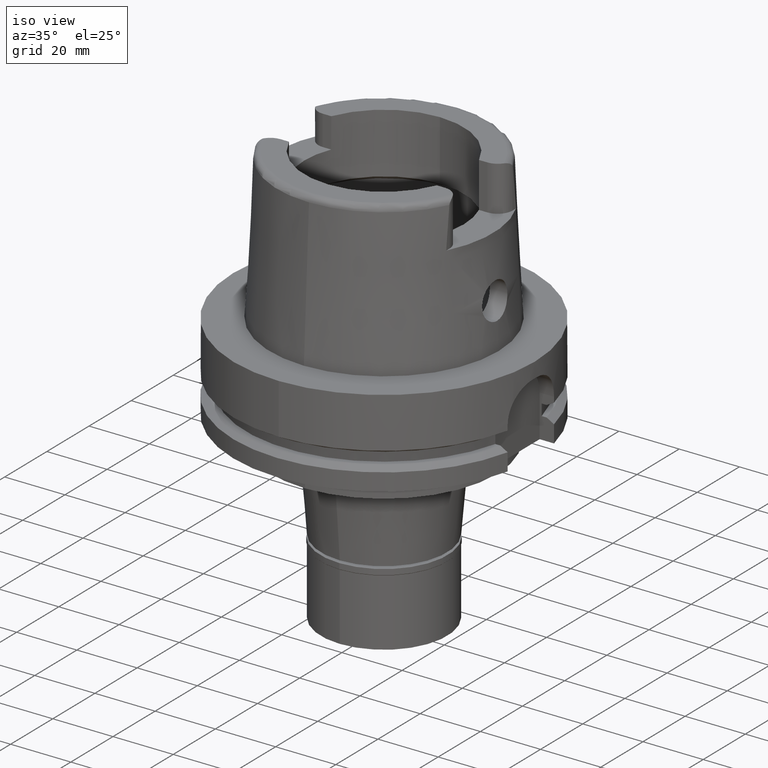
[diagram: clean part render]
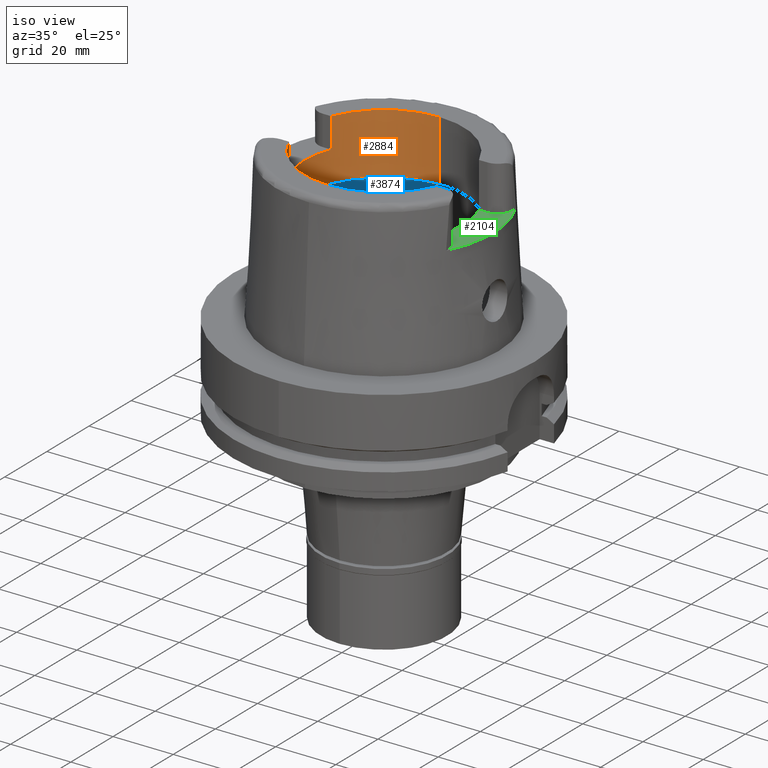
[diagram: same view with three faces highlighted in distinct colors, each labeled with its STEP entity id]
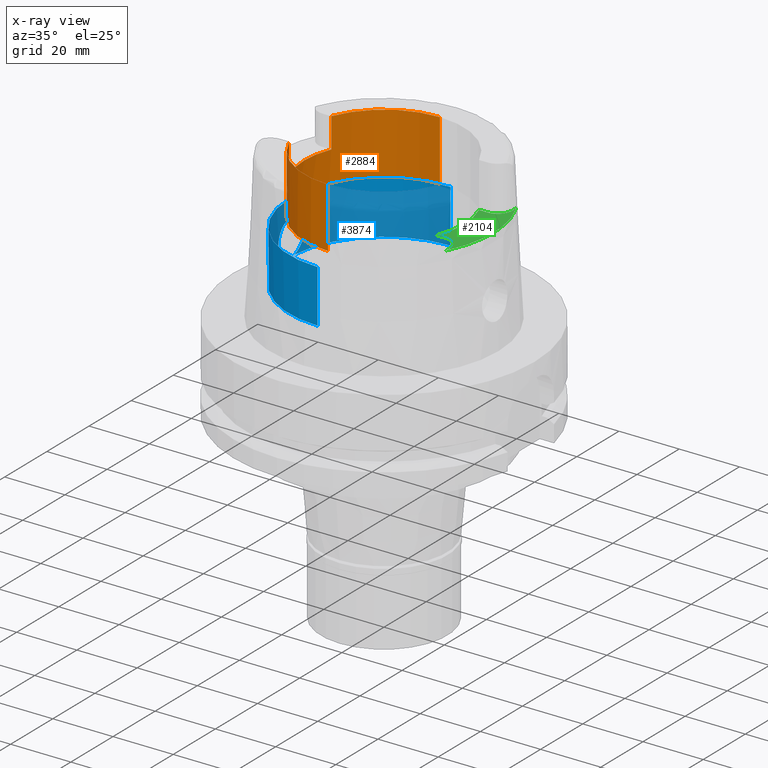
[diagram: x-ray of the same camera — body ghosted, the three highlighted faces saturated]
A machine part, iso view with three faces highlighted in distinct colors.
The next image is the same camera in x-ray (body ghosted, the three faces saturated) — at least one of them is partly hidden behind the body in this view.
Their STEP definitions:

[orange] entity #2884 — the highlighted cylindrical surface (partial cylindrical patch) has radius 26.5 mm, axis along (0, 0, 1).
#131 = CARTESIAN_POINT ( 'NONE',  ( 0.0000000000000000000, -26.50000000000000000, 30.00337567297000163 ) ) ;
#225 = AXIS2_PLACEMENT_3D ( 'NONE', #5357, #2280, #4033 ) ;
#238 = DIRECTION ( 'NONE',  ( 0.0000000000000000000, 0.0000000000000000000, 1.000000000000000000 ) ) ;
#278 = CARTESIAN_POINT ( 'NONE',  ( -24.53670515777999839, 10.00999999999999979, 40.00000000000000000 ) ) ;
#404 = ORIENTED_EDGE ( 'NONE', *, *, #2587, .T. ) ;
#452 = CARTESIAN_POINT ( 'NONE',  ( -24.53670515777999839, 10.00999999999999979, 50.00000000000000000 ) ) ;
#533 = VERTEX_POINT ( 'NONE', #5253 ) ;
#673 = LINE ( 'NONE', #1520, #4813 ) ;
#742 = EDGE_LOOP ( 'NONE', ( #4095, #404, #3862, #1798, #3467, #3884, #4125, #2372 ) ) ;
#879 = DIRECTION ( 'NONE',  ( 0.0000000000000000000, -4.406108640804999471E-14, 1.000000000000000000 ) ) ;
#889 = VERTEX_POINT ( 'NONE', #5420 ) ;
#968 = CARTESIAN_POINT ( 'NONE',  ( -24.53670515777999839, -10.00999999999999979, 50.00000000000000000 ) ) ;
#1059 = EDGE_CURVE ( 'NONE', #5304, #4341, #1910, .T. ) ;
#1161 = EDGE_CURVE ( 'NONE', #2266, #5102, #673, .T. ) ;
#1184 = CARTESIAN_POINT ( 'NONE',  ( 0.0000000000000000000, 26.50000000000000000, 30.00337567297000163 ) ) ;
#1299 = CARTESIAN_POINT ( 'NONE',  ( 0.0000000000000000000, 0.0000000000000000000, 30.00337567297000163 ) ) ;
#1425 = VECTOR ( 'NONE', #1543, 1000.000000000000000 ) ;
#1437 = DIRECTION ( 'NONE',  ( 0.0000000000000000000, 4.406108640804999471E-14, 1.000000000000000000 ) ) ;
#1520 = CARTESIAN_POINT ( 'NONE',  ( 0.0000000000000000000, -26.50000000000000000, 30.00337567297000163 ) ) ;
#1543 = DIRECTION ( 'NONE',  ( 0.0000000000000000000, 0.0000000000000000000, 1.000000000000000000 ) ) ;
#1551 = CYLINDRICAL_SURFACE ( 'NONE', #1946, 26.50000000000000000 ) ;
#1592 = CARTESIAN_POINT ( 'NONE',  ( -24.53670515777999839, -10.00999999999999979, 50.00000000000000000 ) ) ;
#1645 = LINE ( 'NONE', #1592, #5634 ) ;
#1703 = EDGE_CURVE ( 'NONE', #4196, #889, #1645, .T. ) ;
#1798 = ORIENTED_EDGE ( 'NONE', *, *, #4763, .T. ) ;
#1852 = AXIS2_PLACEMENT_3D ( 'NONE', #5348, #3167, #3297 ) ;
#1896 = CARTESIAN_POINT ( 'NONE',  ( 0.0000000000000000000, 0.0000000000000000000, 50.00000000000000000 ) ) ;
#1910 = LINE ( 'NONE', #2762, #1425 ) ;
#1928 = CIRCLE ( 'NONE', #225, 26.50000000000000000 ) ;
#1936 = EDGE_CURVE ( 'NONE', #1952, #4341, #1928, .T. ) ;
#1946 = AXIS2_PLACEMENT_3D ( 'NONE', #5044, #238, #2431 ) ;
#1952 = VERTEX_POINT ( 'NONE', #4574 ) ;
#2266 = VERTEX_POINT ( 'NONE', #131 ) ;
#2280 = DIRECTION ( 'NONE',  ( 0.0000000000000000000, 0.0000000000000000000, 1.000000000000000000 ) ) ;
#2299 = AXIS2_PLACEMENT_3D ( 'NONE', #1896, #4856, #3656 ) ;
#2372 = ORIENTED_EDGE ( 'NONE', *, *, #4652, .T. ) ;
#2431 = DIRECTION ( 'NONE',  ( 0.0000000000000000000, 1.000000000000000000, 0.0000000000000000000 ) ) ;
#2461 = DIRECTION ( 'NONE',  ( 0.0000000000000000000, 0.0000000000000000000, -1.000000000000000000 ) ) ;
#2547 = DIRECTION ( 'NONE',  ( 0.0000000000000000000, -1.000000000000000000, 0.0000000000000000000 ) ) ;
#2587 = EDGE_CURVE ( 'NONE', #4196, #5102, #4597, .T. ) ;
#2762 = CARTESIAN_POINT ( 'NONE',  ( -24.53670515777999839, 10.00999999999999979, 40.00000000000000000 ) ) ;
#2884 = ADVANCED_FACE ( 'NONE', ( #3357 ), #1551, .F. ) ;
#2916 = LINE ( 'NONE', #1184, #4585 ) ;
#3167 = DIRECTION ( 'NONE',  ( 0.0000000000000000000, 0.0000000000000000000, 1.000000000000000000 ) ) ;
#3178 = EDGE_CURVE ( 'NONE', #533, #1952, #2916, .T. ) ;
#3297 = DIRECTION ( 'NONE',  ( -0.9259134021805098813, 0.3777358490566039562, 0.0000000000000000000 ) ) ;
#3338 = DIRECTION ( 'NONE',  ( 0.0000000000000000000, 0.0000000000000000000, -1.000000000000000000 ) ) ;
#3357 = FACE_OUTER_BOUND ( 'NONE', #742, .T. ) ;
#3467 = ORIENTED_EDGE ( 'NONE', *, *, #3178, .T. ) ;
#3656 = DIRECTION ( 'NONE',  ( -0.9259134021805098813, -0.3777358490566039562, 0.0000000000000000000 ) ) ;
#3862 = ORIENTED_EDGE ( 'NONE', *, *, #1161, .F. ) ;
#3884 = ORIENTED_EDGE ( 'NONE', *, *, #1936, .T. ) ;
#3904 = CARTESIAN_POINT ( 'NONE',  ( 0.0000000000000000000, -26.50000000000000000, 50.00000000000000000 ) ) ;
#4033 = DIRECTION ( 'NONE',  ( 0.0000000000000000000, 1.000000000000000000, 0.0000000000000000000 ) ) ;
#4095 = ORIENTED_EDGE ( 'NONE', *, *, #1703, .F. ) ;
#4125 = ORIENTED_EDGE ( 'NONE', *, *, #1059, .F. ) ;
#4196 = VERTEX_POINT ( 'NONE', #968 ) ;
#4341 = VERTEX_POINT ( 'NONE', #452 ) ;
#4574 = CARTESIAN_POINT ( 'NONE',  ( 0.0000000000000000000, 26.50000000000000000, 50.00000000000000000 ) ) ;
#4585 = VECTOR ( 'NONE', #879, 1000.000000000000000 ) ;
#4597 = CIRCLE ( 'NONE', #2299, 26.50000000000000711 ) ;
#4604 = CIRCLE ( 'NONE', #5612, 26.50000000000000000 ) ;
#4652 = EDGE_CURVE ( 'NONE', #5304, #889, #4967, .T. ) ;
#4763 = EDGE_CURVE ( 'NONE', #2266, #533, #4604, .T. ) ;
#4813 = VECTOR ( 'NONE', #1437, 1000.000000000000000 ) ;
#4856 = DIRECTION ( 'NONE',  ( 0.0000000000000000000, 0.0000000000000000000, 1.000000000000000000 ) ) ;
#4967 = CIRCLE ( 'NONE', #1852, 26.50000000000000711 ) ;
#5044 = CARTESIAN_POINT ( 'NONE',  ( 0.0000000000000000000, 0.0000000000000000000, -89.12500000000000000 ) ) ;
#5102 = VERTEX_POINT ( 'NONE', #3904 ) ;
#5253 = CARTESIAN_POINT ( 'NONE',  ( 0.0000000000000000000, 26.50000000000000000, 30.00337567297000163 ) ) ;
#5304 = VERTEX_POINT ( 'NONE', #278 ) ;
#5348 = CARTESIAN_POINT ( 'NONE',  ( 0.0000000000000000000, 0.0000000000000000000, 40.00000000000000000 ) ) ;
#5357 = CARTESIAN_POINT ( 'NONE',  ( 0.0000000000000000000, 0.0000000000000000000, 50.00000000000000000 ) ) ;
#5420 = CARTESIAN_POINT ( 'NONE',  ( -24.53670515777999839, -10.00999999999999979, 40.00000000000000000 ) ) ;
#5612 = AXIS2_PLACEMENT_3D ( 'NONE', #1299, #2461, #2547 ) ;
#5634 = VECTOR ( 'NONE', #3338, 1000.000000000000000 ) ;

[blue] entity #3874 — the highlighted cylindrical surface (partial cylindrical patch) has radius 31.5 mm, axis along (0, 0, 1).
#65 = EDGE_CURVE ( 'NONE', #854, #2613, #1237, .T. ) ;
#162 = CARTESIAN_POINT ( 'NONE',  ( 0.0000000000000000000, 0.0000000000000000000, 27.11662432702999936 ) ) ;
#164 = CARTESIAN_POINT ( 'NONE',  ( -30.96440537364962609, 5.785447828796500325, 13.40076518449864196 ) ) ;
#175 = CARTESIAN_POINT ( 'NONE',  ( -31.41933412890320909, -2.266784766196369372, 20.56244489901469663 ) ) ;
#197 = CARTESIAN_POINT ( 'NONE',  ( -31.27401061059657295, -3.766443886689351928, 19.67055226671832457 ) ) ;
#216 = CARTESIAN_POINT ( 'NONE',  ( -31.32349421938751632, 3.326977616984162722, 10.00394166402224982 ) ) ;
#230 = CARTESIAN_POINT ( 'NONE',  ( -31.14017704455011071, -4.746532300246204095, 18.67423543271144126 ) ) ;
#276 = CARTESIAN_POINT ( 'NONE',  ( -31.28064360402521515, 3.709026607565347966, 10.28274523030236942 ) ) ;
#285 = CARTESIAN_POINT ( 'NONE',  ( -31.14924035998625840, -4.695482277330704335, 11.25898190156483736 ) ) ;
#298 = B_SPLINE_CURVE_WITH_KNOTS ( 'NONE', 3,
 ( #3312, #4546, #5003, #216, #4113, #276, #1996, #669, #1933, #3752, #5489, #2388, #3695, #5381, #4516, #1906, #4145, #2845, #5437, #1092, #5063, #5403, #2815, #1486, #1971, #585, #2730, #4943, #4486, #164, #2789, #1881, #3640, #4571, #3231, #2757, #1458, #3197, #5463, #1538, #4976, #1070, #647, #3282, #2359, #5031, #1117, #4606, #702, #2417, #1150, #2908, #1231, #2502, #5548, #2445, #388, #2055, #1260, #3891, #3000, #4638, #4752, #5095, #2932, #736, #5635, #416, #4693, #2556, #5522, #5120, #2971, #3369, #820, #2135, #4724, #4316, #843, #4264, #4201, #1706, #303, #2021, #2081, #1626, #1200, #3460, #1674, #2530, #3782, #362, #4290, #2105 ),
 .UNSPECIFIED., .F., .F.,
 ( 4, 2, 2, 2, 1, 1, 2, 2, 2, 2, 2, 1, 1, 1, 1, 2, 2, 2, 2, 1, 1, 2, 2, 2, 2, 1, 1, 1, 2, 2, 2, 2, 2, 1, 1, 1, 2, 2, 2, 2, 1, 1, 2, 2, 2, 1, 1, 1, 2, 2, 2, 2, 1, 1, 1, 2, 2, 4 ),
 ( 0.0000000000000000000, 0.06249999999998503974, 0.09374999999997755962, 0.1093749999999737432, 0.1171874999999719114, 0.1210937499999710093, 0.1230468749999706624, 0.1249999999999703015, 0.1874999999999588940, 0.2187499999999532319, 0.2343749999999501787, 0.2421874999999486244, 0.2460937499999477640, 0.2480468749999473477, 0.2490234374999474587, 0.2495117187499472922, 0.2499999999999471534, 0.3124999999999316658, 0.3437499999999240052, 0.3593749999999199529, 0.3671874999999181766, 0.3710937499999172329, 0.3749999999999162892, 0.4374999999999026890, 0.4687499999998957501, 0.4843749999998919198, 0.4921874999998900324, 0.4960937499998887557, 0.4980468749998880895, 0.4999999999998875344, 0.5624999999998689937, 0.5937499999998597788, 0.6093749999998548939, 0.6171874999998526734, 0.6210937499998518962, 0.6230468749998512301, 0.6240234374998508970, 0.6249999999998504530, 0.6562499999998570033, 0.6718749999998602229, 0.6796874999998621103, 0.6835937499998631095, 0.6855468749998636646, 0.6874999999998642197, 0.7187499999998782085, 0.7343749999998853140, 0.7421874999998885336, 0.7460937499998903100, 0.7480468749998911981, 0.7499999999998920863, 0.8124999999999176215, 0.8437499999999305000, 0.8593749999999368283, 0.8671874999999401590, 0.8710937499999418243, 0.8730468749999426015, 0.8749999999999432676, 1.000000000000000000 ),
 .UNSPECIFIED. ) ;
#303 = CARTESIAN_POINT ( 'NONE',  ( -31.38258772736764968, 2.721727947784490009, 20.34989259281124419 ) ) ;
#309 = CARTESIAN_POINT ( 'NONE',  ( -31.04292108155917163, -5.346773340625511572, 12.27745611903856293 ) ) ;
#317 = CARTESIAN_POINT ( 'NONE',  ( 0.0000000000000000000, -31.50000000000000000, 9.496624327025999790 ) ) ;
#341 = CARTESIAN_POINT ( 'NONE',  ( -30.92339264593430670, -6.000474976160453444, 14.84822590224799121 ) ) ;
#362 = CARTESIAN_POINT ( 'NONE',  ( -31.47898036195524796, 1.327503304650027749, 20.89336680152952752 ) ) ;
#370 = CARTESIAN_POINT ( 'NONE',  ( -30.98388071452631110, -5.680281154055805359, 13.06009763251606870 ) ) ;
#388 = CARTESIAN_POINT ( 'NONE',  ( -31.07375021965869166, 5.164699089302240864, 18.05399145150470730 ) ) ;
#395 = CARTESIAN_POINT ( 'NONE',  ( -30.96378076329594009, -5.788289250571753364, 16.58184719970361343 ) ) ;
#416 = CARTESIAN_POINT ( 'NONE',  ( -31.16668086261570281, 4.570397163247839956, 18.88748961507314661 ) ) ;
#419 = CARTESIAN_POINT ( 'NONE',  ( 0.0000000000000000000, 0.0000000000000000000, 9.496624327025999790 ) ) ;
#473 = DIRECTION ( 'NONE',  ( 0.0000000000000000000, 0.0000000000000000000, -1.000000000000000000 ) ) ;
#522 = CARTESIAN_POINT ( 'NONE',  ( -31.40918884336000616, -2.390158196043999705, 9.496624327025999790 ) ) ;
#585 = CARTESIAN_POINT ( 'NONE',  ( -31.04518756500950971, 5.333599716054227002, 12.25177938393185428 ) ) ;
#627 = CIRCLE ( 'NONE', #2604, 31.49999999999998934 ) ;
#629 = CARTESIAN_POINT ( 'NONE',  ( -31.30795952076106303, -3.472431625279701617, 19.89404409335559265 ) ) ;
#647 = CARTESIAN_POINT ( 'NONE',  ( -30.93713331823660795, 5.928579567877424239, 15.92991946939527281 ) ) ;
#669 = CARTESIAN_POINT ( 'NONE',  ( -31.25700145804395547, 3.904305459393631050, 10.44379346388454799 ) ) ;
#679 = CARTESIAN_POINT ( 'NONE',  ( -31.47210381269879065, -1.331344791704831554, 20.85299962599573220 ) ) ;
#701 = DIRECTION ( 'NONE',  ( 0.0000000000000000000, 1.000000000000000000, 0.0000000000000000000 ) ) ;
#702 = CARTESIAN_POINT ( 'NONE',  ( -30.95930887088985983, 5.811754255572782135, 16.52176294010607549 ) ) ;
#712 = CARTESIAN_POINT ( 'NONE',  ( -31.04517455347485111, -5.333672063957424214, 12.25191874799515723 ) ) ;
#716 = CARTESIAN_POINT ( 'NONE',  ( 0.0000000000000000000, -31.50000000000000000, 9.496624327025999790 ) ) ;
#736 = CARTESIAN_POINT ( 'NONE',  ( -31.15164714186007089, 4.671955733643933684, 18.76497636844372963 ) ) ;
#744 = CARTESIAN_POINT ( 'NONE',  ( -30.94741467073434649, -5.874420937589266423, 16.22117557728824622 ) ) ;
#769 = CARTESIAN_POINT ( 'NONE',  ( -31.01237316507812025, -5.521805440615004557, 12.65106730443906358 ) ) ;
#795 = ORIENTED_EDGE ( 'NONE', *, *, #1367, .T. ) ;
#800 = CARTESIAN_POINT ( 'NONE',  ( -31.04640734177547401, -5.330442608220383072, 17.78046875927102022 ) ) ;
#816 = VERTEX_POINT ( 'NONE', #3267 ) ;
#820 = CARTESIAN_POINT ( 'NONE',  ( -31.24473887855360843, 4.000517461565783250, 19.47311214294559889 ) ) ;
#828 = CARTESIAN_POINT ( 'NONE',  ( -30.92613444811330226, -5.986400588418405277, 15.52780896332251181 ) ) ;
#843 = CARTESIAN_POINT ( 'NONE',  ( -31.27138877838812192, 3.787830209748249022, 19.65322009041824103 ) ) ;
#848 = DIRECTION ( 'NONE',  ( -0.9971171061384295209, 0.07587803796965221503, 0.0000000000000000000 ) ) ;
#854 = VERTEX_POINT ( 'NONE', #716 ) ;
#903 = DIRECTION ( 'NONE',  ( 0.0000000000000000000, -1.000000000000000000, 0.0000000000000000000 ) ) ;
#1021 = CARTESIAN_POINT ( 'NONE',  ( -31.43854380686347838, -1.965159683631739096, 20.66907053172601749 ) ) ;
#1048 = CARTESIAN_POINT ( 'NONE',  ( -31.50000000000000000, -0.3265951356611669909, 20.99999999999998934 ) ) ;
#1070 = CARTESIAN_POINT ( 'NONE',  ( -30.93370143692659724, 5.946638204846149023, 15.80298496144282794 ) ) ;
#1092 = CARTESIAN_POINT ( 'NONE',  ( -31.05577131277701142, 5.272304599157614291, 12.13579392197875606 ) ) ;
#1093 = CARTESIAN_POINT ( 'NONE',  ( -31.50000000000000000, 0.0000000000000000000, 21.00000000000000000 ) ) ;
#1117 = CARTESIAN_POINT ( 'NONE',  ( -30.94672047930744796, 5.878078287984345174, 16.20345762504451415 ) ) ;
#1150 = CARTESIAN_POINT ( 'NONE',  ( -31.00961732980815100, 5.538953753457100504, 17.31285343641465957 ) ) ;
#1159 = CARTESIAN_POINT ( 'NONE',  ( -31.22685469609872655, -4.139113351501083393, 10.65627274413171044 ) ) ;
#1165 = B_SPLINE_CURVE_WITH_KNOTS ( 'NONE', 3,
 ( #4070, #1048, #3649, #4580, #679, #2766, #2798, #2738, #1441, #1021, #3734, #4496, #2397, #175, #5389, #1468, #4526, #1497, #629, #2343, #4555, #4098, #1547, #197, #3241, #2368, #4153, #4122, #230, #3704, #5128, #3441, #2454, #5531, #1185, #3324, #800, #4733, #2006, #2090, #395, #3870, #2512, #2066, #1573, #744, #4210, #4273, #828, #3819, #341, #5614, #5186, #3379, #4184, #4649, #2540, #4676, #1684, #370, #2892, #769, #1269, #4616, #3846, #309, #2034, #712, #2427, #5557, #5074, #4298, #1635, #285, #3762, #1240, #1656, #1209, #5499, #1159, #3791, #1607, #3353, #5105, #2944, #2917, #4241 ),
 .UNSPECIFIED., .F., .F.,
 ( 4, 2, 2, 1, 1, 1, 1, 2, 2, 2, 2, 2, 1, 1, 2, 2, 2, 2, 1, 1, 1, 2, 2, 2, 2, 1, 1, 1, 2, 2, 2, 2, 1, 1, 2, 2, 2, 2, 1, 1, 1, 1, 1, 2, 2, 2, 2, 2, 1, 1, 2, 2, 2, 4 ),
 ( 0.0000000000000000000, 0.06250000000000349720, 0.09375000000000530131, 0.1093750000000062034, 0.1171875000000065503, 0.1210937500000066336, 0.1230468750000066613, 0.1240234375000066336, 0.1250000000000066058, 0.1875000000000152656, 0.2187500000000196232, 0.2343750000000218436, 0.2421875000000227318, 0.2460937500000232314, 0.2480468750000236478, 0.2500000000000240918, 0.3125000000000401901, 0.3437500000000484612, 0.3593750000000522915, 0.3671875000000542344, 0.3710937500000551781, 0.3730468750000554556, 0.3750000000000557332, 0.4375000000000563438, 0.4687500000000566769, 0.4843750000000564548, 0.4921875000000563993, 0.4960937500000560663, 0.4980468750000558997, 0.5000000000000557332, 0.5625000000000554001, 0.5937500000000550671, 0.6093750000000548450, 0.6171875000000547340, 0.6210937500000545120, 0.6250000000000542899, 0.6875000000000510703, 0.7187500000000495159, 0.7343750000000486278, 0.7421875000000481837, 0.7460937500000478506, 0.7480468750000476286, 0.7490234375000475175, 0.7495117187500475175, 0.7500000000000475175, 0.8125000000000376366, 0.8437500000000328626, 0.8593750000000305311, 0.8671875000000293099, 0.8710937500000286438, 0.8730468750000283107, 0.8750000000000279776, 0.9375000000000139888, 1.000000000000000000 ),
 .UNSPECIFIED. ) ;
#1185 = CARTESIAN_POINT ( 'NONE',  ( -31.08072618987790392, -5.122431619829488803, 18.12422948299720460 ) ) ;
#1200 = CARTESIAN_POINT ( 'NONE',  ( -31.42878496217321072, 2.115845638278574192, 20.61478128239483354 ) ) ;
#1209 = CARTESIAN_POINT ( 'NONE',  ( -31.21270270119516610, -4.245397372786705148, 10.75940961860723633 ) ) ;
#1213 = EDGE_CURVE ( 'NONE', #2912, #1544, #3730, .T. ) ;
#1231 = CARTESIAN_POINT ( 'NONE',  ( -31.04260824686963716, 5.349746934603452075, 17.71815787122567798 ) ) ;
#1237 = CIRCLE ( 'NONE', #2677, 31.50000000000000000 ) ;
#1240 = CARTESIAN_POINT ( 'NONE',  ( -31.18852596532830290, -4.421805925946461713, 10.94287546143478451 ) ) ;
#1260 = CARTESIAN_POINT ( 'NONE',  ( -31.07878861961215833, 5.134204424633806774, 18.10483175809396172 ) ) ;
#1269 = CARTESIAN_POINT ( 'NONE',  ( -31.02180097007336101, -5.468465866568203104, 12.52812534894262519 ) ) ;
#1306 = CIRCLE ( 'NONE', #2479, 31.50000000000000000 ) ;
#1367 = EDGE_CURVE ( 'NONE', #816, #2912, #627, .T. ) ;
#1441 = CARTESIAN_POINT ( 'NONE',  ( -31.44081400439777951, -1.928654095390184509, 20.68164981285788073 ) ) ;
#1458 = CARTESIAN_POINT ( 'NONE',  ( -30.93438270671231294, 5.942631215139403622, 14.17200177640418168 ) ) ;
#1468 = CARTESIAN_POINT ( 'NONE',  ( -31.35601783979113222, -3.006815719747241822, 20.19503842201452670 ) ) ;
#1479 = CARTESIAN_POINT ( 'NONE',  ( 0.0000000000000000000, -31.50000000000000000, 27.11662432702999936 ) ) ;
#1486 = CARTESIAN_POINT ( 'NONE',  ( -31.04581058260033188, 5.329979537571508885, 12.24476213492707544 ) ) ;
#1497 = CARTESIAN_POINT ( 'NONE',  ( -31.31646279675445044, -3.394227743808024389, 19.94852855997726948 ) ) ;
#1538 = CARTESIAN_POINT ( 'NONE',  ( -30.92535214902340712, 5.990466605833762337, 15.37852798017154221 ) ) ;
#1544 = VERTEX_POINT ( 'NONE', #4226 ) ;
#1547 = CARTESIAN_POINT ( 'NONE',  ( -31.27636264283265177, -3.746839878359071285, 19.68629373318249520 ) ) ;
#1573 = CARTESIAN_POINT ( 'NONE',  ( -30.94815925833647086, -5.870505071407877473, 16.23986343970893031 ) ) ;
#1607 = CARTESIAN_POINT ( 'NONE',  ( -31.23134568345586359, -4.105029714577345779, 10.62405312733711682 ) ) ;
#1626 = CARTESIAN_POINT ( 'NONE',  ( -31.42012672216785418, 2.242248292087464900, 20.56623014348465617 ) ) ;
#1635 = CARTESIAN_POINT ( 'NONE',  ( -31.13176651334511646, -4.810074859239893641, 11.40940082059782412 ) ) ;
#1656 = CARTESIAN_POINT ( 'NONE',  ( -31.20452329168233874, -4.305544797686287062, 10.82083252463395695 ) ) ;
#1674 = CARTESIAN_POINT ( 'NONE',  ( -31.43466007980576293, 2.026249571626639323, 20.64751295059909708 ) ) ;
#1684 = CARTESIAN_POINT ( 'NONE',  ( -30.95594804820877144, -5.831170078789819300, 13.54648142420143841 ) ) ;
#1706 = CARTESIAN_POINT ( 'NONE',  ( -31.34171231237771593, 3.171484424708382210, 20.10473325936849065 ) ) ;
#1848 = DIRECTION ( 'NONE',  ( 0.0000000000000000000, 0.0000000000000000000, 1.000000000000000000 ) ) ;
#1881 = CARTESIAN_POINT ( 'NONE',  ( -30.94650110749280714, 5.879596500619238775, 13.80125168574601346 ) ) ;
#1906 = CARTESIAN_POINT ( 'NONE',  ( -31.09978699607251329, 5.012223273582227634, 11.69742067265833185 ) ) ;
#1933 = CARTESIAN_POINT ( 'NONE',  ( -31.24965941994080509, 3.963184622094282350, 10.49466748904183255 ) ) ;
#1971 = CARTESIAN_POINT ( 'NONE',  ( -31.04543620941271342, 5.332154695707430392, 12.24897677459441780 ) ) ;
#1996 = CARTESIAN_POINT ( 'NONE',  ( -31.27140842946273125, 3.786874586727248193, 10.34488911578169734 ) ) ;
#2006 = CARTESIAN_POINT ( 'NONE',  ( -30.98609954831475477, -5.668915743305728228, 16.97298943592043585 ) ) ;
#2021 = CARTESIAN_POINT ( 'NONE',  ( -31.39506517126830332, 2.572660064310728245, 20.42285056368691443 ) ) ;
#2034 = CARTESIAN_POINT ( 'NONE',  ( -31.04449650653269899, -5.337616494906512798, 12.25957888861757006 ) ) ;
#2043 = DIRECTION ( 'NONE',  ( 0.0000000000000000000, 4.980251297749999745E-14, 1.000000000000000000 ) ) ;
#2055 = CARTESIAN_POINT ( 'NONE',  ( -31.07726906396012367, 5.143415648864645640, 18.08958282484298508 ) ) ;
#2066 = CARTESIAN_POINT ( 'NONE',  ( -30.94929144269220345, -5.864552954778238458, 16.26793568263956757 ) ) ;
#2081 = CARTESIAN_POINT ( 'NONE',  ( -31.41205979547531513, 2.351912828313712733, 20.52041466365145439 ) ) ;
#2090 = CARTESIAN_POINT ( 'NONE',  ( -30.97638852313608027, -5.721222155902196072, 16.81486889024867537 ) ) ;
#2105 = CARTESIAN_POINT ( 'NONE',  ( -31.50000000000000000, 0.0000000000000000000, 21.00000000000000000 ) ) ;
#2135 = CARTESIAN_POINT ( 'NONE',  ( -31.25908688078997244, 3.886879296912620241, 19.57114721998466322 ) ) ;
#2245 = EDGE_CURVE ( 'NONE', #1544, #3480, #1306, .T. ) ;
#2332 = ORIENTED_EDGE ( 'NONE', *, *, #65, .T. ) ;
#2343 = CARTESIAN_POINT ( 'NONE',  ( -31.29471105061595892, -3.589966099300467395, 19.80775474113034917 ) ) ;
#2359 = CARTESIAN_POINT ( 'NONE',  ( -30.94471645955743355, 5.888636474621030459, 16.15098327758164842 ) ) ;
#2368 = CARTESIAN_POINT ( 'NONE',  ( -31.23935720786214532, -4.052724198433145908, 19.43774687240800958 ) ) ;
#2388 = CARTESIAN_POINT ( 'NONE',  ( -31.23446154527433904, 4.081251413882011292, 10.60186784004400096 ) ) ;
#2397 = CARTESIAN_POINT ( 'NONE',  ( -31.43650139800092091, -1.997495828617940949, 20.65774069110164746 ) ) ;
#2417 = CARTESIAN_POINT ( 'NONE',  ( -30.97629757941624717, 5.723226995882675361, 16.83354071639717020 ) ) ;
#2427 = CARTESIAN_POINT ( 'NONE',  ( -31.04562722139421638, -5.331037979719049247, 12.24681233617222809 ) ) ;
#2445 = CARTESIAN_POINT ( 'NONE',  ( -31.06681967326915839, 5.206432106330213472, 17.98277394321854317 ) ) ;
#2454 = CARTESIAN_POINT ( 'NONE',  ( -31.08534261814413924, -5.094287805623189058, 18.17002219001144425 ) ) ;
#2460 = FACE_OUTER_BOUND ( 'NONE', #3264, .T. ) ;
#2479 = AXIS2_PLACEMENT_3D ( 'NONE', #162, #1848, #701 ) ;
#2489 = CARTESIAN_POINT ( 'NONE',  ( 0.0000000000000000000, 31.50000000000000000, 9.496624327025999790 ) ) ;
#2502 = CARTESIAN_POINT ( 'NONE',  ( -31.04979418185210704, 5.307644725504799155, 17.79955785726805573 ) ) ;
#2510 = ORIENTED_EDGE ( 'NONE', *, *, #4080, .F. ) ;
#2512 = CARTESIAN_POINT ( 'NONE',  ( -30.95204032685683870, -5.850111470388795532, 16.33371732104617280 ) ) ;
#2530 = CARTESIAN_POINT ( 'NONE',  ( -31.43580730760780284, 2.008395018514859576, 20.65388709679512402 ) ) ;
#2540 = CARTESIAN_POINT ( 'NONE',  ( -30.93383822146130413, -5.945492396761819620, 14.19284567888338877 ) ) ;
#2556 = CARTESIAN_POINT ( 'NONE',  ( -31.17269419759566773, 4.529133811902780415, 18.93536627158275820 ) ) ;
#2568 = AXIS2_PLACEMENT_3D ( 'NONE', #3385, #5133, #4655 ) ;
#2604 = AXIS2_PLACEMENT_3D ( 'NONE', #4236, #3866, #848 ) ;
#2613 = VERTEX_POINT ( 'NONE', #522 ) ;
#2677 = AXIS2_PLACEMENT_3D ( 'NONE', #419, #473, #903 ) ;
#2730 = CARTESIAN_POINT ( 'NONE',  ( -31.04516689537100405, 5.333719709569479939, 12.25201121742740185 ) ) ;
#2738 = CARTESIAN_POINT ( 'NONE',  ( -31.44524542998466998, -1.855567973145922700, 20.70615959649967408 ) ) ;
#2757 = CARTESIAN_POINT ( 'NONE',  ( -30.93486335740105631, 5.940124237767273385, 14.15424058500448190 ) ) ;
#2766 = CARTESIAN_POINT ( 'NONE',  ( -31.46014830385539796, -1.583260562099434443, 20.78798815535908062 ) ) ;
#2789 = CARTESIAN_POINT ( 'NONE',  ( -30.95645738248947509, 5.827459834614126422, 13.56218151352748613 ) ) ;
#2798 = CARTESIAN_POINT ( 'NONE',  ( -31.45367240323193059, -1.709128341384544392, 20.75259253079210708 ) ) ;
#2815 = CARTESIAN_POINT ( 'NONE',  ( -31.04669396611789622, 5.324850587856846396, 12.23485300447843116 ) ) ;
#2845 = CARTESIAN_POINT ( 'NONE',  ( -31.06852275278684772, 5.198271953509357779, 12.00290348895139125 ) ) ;
#2892 = CARTESIAN_POINT ( 'NONE',  ( -30.99449541045394696, -5.622045063260416420, 12.89669549617946664 ) ) ;
#2908 = CARTESIAN_POINT ( 'NONE',  ( -31.02203002787251407, 5.468953737469655074, 17.47451872618437463 ) ) ;
#2912 = VERTEX_POINT ( 'NONE', #2489 ) ;
#2917 = CARTESIAN_POINT ( 'NONE',  ( -31.39148165065881102, -2.622849304272248272, 9.597683857126538598 ) ) ;
#2932 = CARTESIAN_POINT ( 'NONE',  ( -31.13842003555041416, 4.759732663335273450, 18.65428716740374071 ) ) ;
#2944 = CARTESIAN_POINT ( 'NONE',  ( -31.36791494010813963, -2.890011758950974396, 9.730801291533943242 ) ) ;
#2945 = VECTOR ( 'NONE', #2043, 1000.000000000000000 ) ;
#2971 = CARTESIAN_POINT ( 'NONE',  ( -31.20786932598992180, 4.280700128218795086, 19.20773368895202537 ) ) ;
#3000 = CARTESIAN_POINT ( 'NONE',  ( -31.08045232837207550, 5.124108468049644038, 18.12146298426853619 ) ) ;
#3071 = VECTOR ( 'NONE', #3287, 1000.000000000000000 ) ;
#3197 = CARTESIAN_POINT ( 'NONE',  ( -30.92513526102272081, 5.990966511010530127, 14.52808313732352907 ) ) ;
#3231 = CARTESIAN_POINT ( 'NONE',  ( -30.93594940397529669, 5.934465969105274574, 14.11541048519938890 ) ) ;
#3241 = CARTESIAN_POINT ( 'NONE',  ( -31.27265209057028628, -3.777709567698571469, 19.66144031638551226 ) ) ;
#3264 = EDGE_LOOP ( 'NONE', ( #3746, #795, #4726, #4786, #2510, #2332, #5179 ) ) ;
#3267 = CARTESIAN_POINT ( 'NONE',  ( -31.40918884336000616, 2.390158196043999705, 9.496624327025999790 ) ) ;
#3282 = CARTESIAN_POINT ( 'NONE',  ( -30.94203852206685568, 5.902744183296488423, 16.07741215372607257 ) ) ;
#3287 = DIRECTION ( 'NONE',  ( 0.0000000000000000000, -4.980251297749999745E-14, 1.000000000000000000 ) ) ;
#3312 = CARTESIAN_POINT ( 'NONE',  ( -31.40918884336000616, 2.390158196043999705, 9.496624327025999790 ) ) ;
#3324 = CARTESIAN_POINT ( 'NONE',  ( -31.07990292946069744, -5.127433926417443111, 18.11601709967991880 ) ) ;
#3335 = EDGE_CURVE ( 'NONE', #816, #4475, #298, .T. ) ;
#3353 = CARTESIAN_POINT ( 'NONE',  ( -31.27377673705811389, -3.781460887588739883, 10.32187396011832803 ) ) ;
#3369 = CARTESIAN_POINT ( 'NONE',  ( -31.23244643176777657, 4.095185673466416709, 19.38597861326910277 ) ) ;
#3379 = CARTESIAN_POINT ( 'NONE',  ( -30.93075452679429915, -5.961645088711203577, 14.32035476003184016 ) ) ;
#3385 = CARTESIAN_POINT ( 'NONE',  ( 0.0000000000000000000, 0.0000000000000000000, -89.12500000000000000 ) ) ;
#3441 = CARTESIAN_POINT ( 'NONE',  ( -31.09185261184036975, -5.054302490735563147, 18.23376901719193910 ) ) ;
#3460 = CARTESIAN_POINT ( 'NONE',  ( -31.43292578855859531, 2.053063081808927048, 20.63786886506791518 ) ) ;
#3480 = VERTEX_POINT ( 'NONE', #1479 ) ;
#3640 = CARTESIAN_POINT ( 'NONE',  ( -30.94201439793035391, 5.902945667003454133, 13.92002647101411839 ) ) ;
#3649 = CARTESIAN_POINT ( 'NONE',  ( -31.49468644051406940, -0.6600454946956286761, 20.97327599051250502 ) ) ;
#3695 = CARTESIAN_POINT ( 'NONE',  ( -31.23333518499244477, 4.089872077797492622, 10.60987740593484396 ) ) ;
#3704 = CARTESIAN_POINT ( 'NONE',  ( -31.11662495132787498, -4.898526144656988990, 18.46580947733428246 ) ) ;
#3730 = LINE ( 'NONE', #5468, #3071 ) ;
#3734 = CARTESIAN_POINT ( 'NONE',  ( -31.43755918976147257, -1.980796468811679478, 20.66360978955113836 ) ) ;
#3746 = ORIENTED_EDGE ( 'NONE', *, *, #3335, .F. ) ;
#3752 = CARTESIAN_POINT ( 'NONE',  ( -31.24085124213140574, 4.032036103046137576, 10.55658598188757580 ) ) ;
#3762 = CARTESIAN_POINT ( 'NONE',  ( -31.17834307132115867, -4.493934286353540308, 11.02316115648086026 ) ) ;
#3768 = LINE ( 'NONE', #317, #2945 ) ;
#3782 = CARTESIAN_POINT ( 'NONE',  ( -31.43628422217685525, 2.000932791795076771, 20.65653503279964909 ) ) ;
#3791 = CARTESIAN_POINT ( 'NONE',  ( -31.22973178788284443, -4.117303870957671030, 10.63559458297644333 ) ) ;
#3819 = CARTESIAN_POINT ( 'NONE',  ( -30.92305064633718104, -6.002379976712683529, 15.01811606617329886 ) ) ;
#3846 = CARTESIAN_POINT ( 'NONE',  ( -31.03979696984479375, -5.364900058805383232, 12.31322412815366896 ) ) ;
#3866 = DIRECTION ( 'NONE',  ( 0.0000000000000000000, 0.0000000000000000000, -1.000000000000000000 ) ) ;
#3870 = CARTESIAN_POINT ( 'NONE',  ( -30.95796657785784234, -5.818975759630258260, 16.46637156646767153 ) ) ;
#3874 = ADVANCED_FACE ( 'NONE', ( #2460 ), #4302, .F. ) ;
#3891 = CARTESIAN_POINT ( 'NONE',  ( -31.07980420771859187, 5.128043619281967835, 18.11499662258880861 ) ) ;
#4070 = CARTESIAN_POINT ( 'NONE',  ( -31.50000000000000000, 0.0000000000000000000, 21.00000000000000000 ) ) ;
#4080 = EDGE_CURVE ( 'NONE', #854, #3480, #3768, .T. ) ;
#4098 = CARTESIAN_POINT ( 'NONE',  ( -31.27987526755691405, -3.717429863199400497, 19.70975714548904278 ) ) ;
#4113 = CARTESIAN_POINT ( 'NONE',  ( -31.30724070856265229, 3.477866725126646852, 10.10695117603473037 ) ) ;
#4122 = CARTESIAN_POINT ( 'NONE',  ( -31.15638392304088811, -4.639233824207877888, 18.80881540236548233 ) ) ;
#4145 = CARTESIAN_POINT ( 'NONE',  ( -31.08612902610504491, 5.094440501758760398, 11.82743775935493957 ) ) ;
#4153 = CARTESIAN_POINT ( 'NONE',  ( -31.20652100754121250, -4.300627620806049656, 19.19795939082837322 ) ) ;
#4184 = CARTESIAN_POINT ( 'NONE',  ( -30.93223130495443840, -5.953905832135665044, 14.25740174169897401 ) ) ;
#4201 = CARTESIAN_POINT ( 'NONE',  ( -31.30987125800052695, 3.474931509304009847, 19.90611039177173680 ) ) ;
#4210 = CARTESIAN_POINT ( 'NONE',  ( -30.94709211533576720, -5.876117804880733431, 16.21299367277833525 ) ) ;
#4226 = CARTESIAN_POINT ( 'NONE',  ( 0.0000000000000000000, 31.50000000000000000, 27.11662432702999936 ) ) ;
#4236 = CARTESIAN_POINT ( 'NONE',  ( 0.0000000000000000000, 0.0000000000000000000, 9.496624327025999790 ) ) ;
#4241 = CARTESIAN_POINT ( 'NONE',  ( -31.40918884336000616, -2.390158196043999705, 9.496624327025999790 ) ) ;
#4264 = CARTESIAN_POINT ( 'NONE',  ( -31.27230093115315057, 3.780430856884851032, 19.65923644006700144 ) ) ;
#4273 = CARTESIAN_POINT ( 'NONE',  ( -30.93367005005405801, -5.946768138624681121, 15.86763720007469658 ) ) ;
#4290 = CARTESIAN_POINT ( 'NONE',  ( -31.49999999999999289, 0.6498053774087004797, 20.99999999999999645 ) ) ;
#4298 = CARTESIAN_POINT ( 'NONE',  ( -31.08512885616799437, -5.105021580608322118, 11.82893627689627714 ) ) ;
#4302 = CYLINDRICAL_SURFACE ( 'NONE', #2568, 31.50000000000000000 ) ;
#4304 = EDGE_CURVE ( 'NONE', #4475, #2613, #1165, .T. ) ;
#4316 = CARTESIAN_POINT ( 'NONE',  ( -31.26933825255439459, 3.804432712347202816, 19.63965587570628557 ) ) ;
#4475 = VERTEX_POINT ( 'NONE', #1093 ) ;
#4486 = CARTESIAN_POINT ( 'NONE',  ( -30.99218077061721388, 5.635534246195624597, 12.91275586973936917 ) ) ;
#4496 = CARTESIAN_POINT ( 'NONE',  ( -31.43690018384865681, -1.991219061987312688, 20.65995381132519526 ) ) ;
#4516 = CARTESIAN_POINT ( 'NONE',  ( -31.14652226924087586, 4.716982684011055582, 11.27606071622597739 ) ) ;
#4526 = CARTESIAN_POINT ( 'NONE',  ( -31.34098551242452757, -3.160810808257228821, 20.10334621374951780 ) ) ;
#4546 = CARTESIAN_POINT ( 'NONE',  ( -31.39146074371110373, 2.623124043514491355, 9.597803178483214737 ) ) ;
#4555 = CARTESIAN_POINT ( 'NONE',  ( -31.28796342650461071, -3.648789918618370098, 19.76346963154453462 ) ) ;
#4571 = CARTESIAN_POINT ( 'NONE',  ( -30.93763990232864458, 5.925669061132442295, 14.05704355760512847 ) ) ;
#4580 = CARTESIAN_POINT ( 'NONE',  ( -31.47874576205621366, -1.163164667267867936, 20.88863052715101887 ) ) ;
#4606 = CARTESIAN_POINT ( 'NONE',  ( -30.94717698794859828, 5.875673112439442569, 16.21513602679720023 ) ) ;
#4616 = CARTESIAN_POINT ( 'NONE',  ( -31.03365569934673474, -5.400408291021199680, 12.38480855497031641 ) ) ;
#4638 = CARTESIAN_POINT ( 'NONE',  ( -31.09270502907130052, 5.049671679730810325, 18.24345811311891197 ) ) ;
#4649 = CARTESIAN_POINT ( 'NONE',  ( -30.93325863415043742, -5.948525657678116474, 14.21546871884166663 ) ) ;
#4655 = DIRECTION ( 'NONE',  ( 0.0000000000000000000, 1.000000000000000000, 0.0000000000000000000 ) ) ;
#4676 = CARTESIAN_POINT ( 'NONE',  ( -30.94254149928427466, -5.899972280050645779, 13.86550485440075953 ) ) ;
#4693 = CARTESIAN_POINT ( 'NONE',  ( -31.17027987183022830, 4.545726517980467563, 18.91618835110893926 ) ) ;
#4724 = CARTESIAN_POINT ( 'NONE',  ( -31.26626258548808579, 3.829281940762700120, 19.61924281482635024 ) ) ;
#4726 = ORIENTED_EDGE ( 'NONE', *, *, #1213, .T. ) ;
#4733 = CARTESIAN_POINT ( 'NONE',  ( -31.01915017970657473, -5.486385384531049958, 17.45290592730684409 ) ) ;
#4752 = CARTESIAN_POINT ( 'NONE',  ( -31.10650468081244213, 4.964778793341836582, 18.37349596831646892 ) ) ;
#4786 = ORIENTED_EDGE ( 'NONE', *, *, #2245, .T. ) ;
#4943 = CARTESIAN_POINT ( 'NONE',  ( -31.01593959991176774, 5.503665357015616877, 12.58225702738756446 ) ) ;
#4976 = CARTESIAN_POINT ( 'NONE',  ( -30.92786777979440771, 5.977300902742164190, 15.54866845055494018 ) ) ;
#5003 = CARTESIAN_POINT ( 'NONE',  ( -31.36782107526186891, 2.891018643957559586, 9.731268934371831492 ) ) ;
#5031 = CARTESIAN_POINT ( 'NONE',  ( -30.94591243324814300, 5.882335519597816642, 16.18247344571818758 ) ) ;
#5063 = CARTESIAN_POINT ( 'NONE',  ( -31.05226995745775653, 5.292553791858659373, 12.17331238039180086 ) ) ;
#5074 = CARTESIAN_POINT ( 'NONE',  ( -31.06174892837834633, -5.237171748201059351, 12.06547958409179699 ) ) ;
#5095 = CARTESIAN_POINT ( 'NONE',  ( -31.13008152592795241, 4.813936277525151297, 18.58237259294637056 ) ) ;
#5105 = CARTESIAN_POINT ( 'NONE',  ( -31.30906248330778752, -3.469223213127287320, 10.09274890660014634 ) ) ;
#5120 = CARTESIAN_POINT ( 'NONE',  ( -31.19149497252977099, 4.399278007525380119, 19.08359760473558353 ) ) ;
#5128 = CARTESIAN_POINT ( 'NONE',  ( -31.10503846084524326, -4.972285585193342072, 18.35995831805987066 ) ) ;
#5133 = DIRECTION ( 'NONE',  ( 0.0000000000000000000, 0.0000000000000000000, 1.000000000000000000 ) ) ;
#5179 = ORIENTED_EDGE ( 'NONE', *, *, #4304, .F. ) ;
#5186 = CARTESIAN_POINT ( 'NONE',  ( -30.92775822052439239, -5.977380883560367231, 14.46759520298648027 ) ) ;
#5381 = CARTESIAN_POINT ( 'NONE',  ( -31.18536093570775947, 4.455197650281368382, 10.95194643637901954 ) ) ;
#5389 = CARTESIAN_POINT ( 'NONE',  ( -31.39716637265063781, -2.554710158064711134, 20.43975329616943526 ) ) ;
#5403 = CARTESIAN_POINT ( 'NONE',  ( -31.04850011747226546, 5.314376854579061060, 12.21473573715502603 ) ) ;
#5437 = CARTESIAN_POINT ( 'NONE',  ( -31.06313410861962154, 5.229627001089918181, 12.05814847346764651 ) ) ;
#5463 = CARTESIAN_POINT ( 'NONE',  ( -30.92192567866185726, 6.008204369790048460, 14.86818725264762442 ) ) ;
#5468 = CARTESIAN_POINT ( 'NONE',  ( 0.0000000000000000000, 31.50000000000000000, 9.496624327025999790 ) ) ;
#5489 = CARTESIAN_POINT ( 'NONE',  ( -31.23702435163685109, 4.061563625524104992, 10.58368020682688559 ) ) ;
#5499 = CARTESIAN_POINT ( 'NONE',  ( -31.22256165171449638, -4.171558558415038753, 10.68726830917688631 ) ) ;
#5522 = CARTESIAN_POINT ( 'NONE',  ( -31.17410825468627422, 4.519387171797121461, 18.94654969551242374 ) ) ;
#5531 = CARTESIAN_POINT ( 'NONE',  ( -31.08257039173279423, -5.111203625293113006, 18.14256472694654221 ) ) ;
#5548 = CARTESIAN_POINT ( 'NONE',  ( -31.06106287730094451, 5.240786949111801540, 17.92169579801044677 ) ) ;
#5557 = CARTESIAN_POINT ( 'NONE',  ( -31.04595843734320582, -5.329109896933163171, 12.24308322398900017 ) ) ;
#5614 = CARTESIAN_POINT ( 'NONE',  ( -30.92596054561374075, -5.986869443955488812, 14.59431774736727583 ) ) ;
#5635 = CARTESIAN_POINT ( 'NONE',  ( -31.15844053048387963, 4.626449191040252984, 18.82102370480991027 ) ) ;

[green] entity #2104 — the highlighted planar face has unit normal (0, 0, 1).
#71 = AXIS2_PLACEMENT_3D ( 'NONE', #5123, #3841, #2058 ) ;
#130 = AXIS2_PLACEMENT_3D ( 'NONE', #3092, #4029, #929 ) ;
#369 = CARTESIAN_POINT ( 'NONE',  ( 32.25000000000000000, -15.44428485661910599, 35.00000000000000000 ) ) ;
#456 = VERTEX_POINT ( 'NONE', #4684 ) ;
#630 = EDGE_CURVE ( 'NONE', #4308, #1352, #1783, .T. ) ;
#664 = DIRECTION ( 'NONE',  ( -2.841526755965894529E-06, 0.9999999999959628960, 2.136488158935919871E-14 ) ) ;
#735 = DIRECTION ( 'NONE',  ( 0.0000000000000000000, 0.0000000000000000000, 1.000000000000000000 ) ) ;
#737 = CARTESIAN_POINT ( 'NONE',  ( 32.25000000000000000, -14.89000000000000057, 35.00000000000000000 ) ) ;
#817 = DIRECTION ( 'NONE',  ( -1.000000000000000000, -1.460812116737999860E-13, 0.0000000000000000000 ) ) ;
#836 = ORIENTED_EDGE ( 'NONE', *, *, #5514, .F. ) ;
#929 = DIRECTION ( 'NONE',  ( 1.000000000000000000, 0.0000000000000000000, 0.0000000000000000000 ) ) ;
#1154 = VERTEX_POINT ( 'NONE', #2794 ) ;
#1181 = CARTESIAN_POINT ( 'NONE',  ( 27.36999999999999744, 10.00999999999999979, 35.00000000000000000 ) ) ;
#1352 = VERTEX_POINT ( 'NONE', #1181 ) ;
#1398 = CIRCLE ( 'NONE', #2036, 26.50000000000000711 ) ;
#1515 = CIRCLE ( 'NONE', #4810, 4.879999999999999005 ) ;
#1542 = DIRECTION ( 'NONE',  ( 1.000000000000000000, 0.0000000000000000000, 0.0000000000000000000 ) ) ;
#1598 = DIRECTION ( 'NONE',  ( 0.0000000000000000000, 0.0000000000000000000, 1.000000000000000000 ) ) ;
#1650 = CARTESIAN_POINT ( 'NONE',  ( 27.36999999999999744, 14.89000000000000057, 35.00000000000000000 ) ) ;
#1714 = CARTESIAN_POINT ( 'NONE',  ( 32.25000000000000000, -14.89000000000000057, 35.00000000000000000 ) ) ;
#1783 = LINE ( 'NONE', #2289, #2242 ) ;
#1792 = EDGE_CURVE ( 'NONE', #4552, #456, #5277, .T. ) ;
#1857 = ORIENTED_EDGE ( 'NONE', *, *, #630, .F. ) ;
#2036 = AXIS2_PLACEMENT_3D ( 'NONE', #4636, #735, #2444 ) ;
#2058 = DIRECTION ( 'NONE',  ( 0.8896561898442558736, 0.4566309931134779343, 0.0000000000000000000 ) ) ;
#2100 = CARTESIAN_POINT ( 'NONE',  ( 27.36999999999999744, -10.00999999999999979, 35.00000000000000000 ) ) ;
#2104 = ADVANCED_FACE ( 'NONE', ( #5322 ), #3981, .T. ) ;
#2161 = LINE ( 'NONE', #2100, #3125 ) ;
#2242 = VECTOR ( 'NONE', #3541, 1000.000000000000000 ) ;
#2289 = CARTESIAN_POINT ( 'NONE',  ( 24.53670515777999839, 10.00999999999999979, 35.00000000000000000 ) ) ;
#2365 = EDGE_LOOP ( 'NONE', ( #4085, #3192, #4900, #836, #4452, #3320, #1857, #4578 ) ) ;
#2392 = DIRECTION ( 'NONE',  ( 0.0000000000000000000, 0.0000000000000000000, 1.000000000000000000 ) ) ;
#2401 = CARTESIAN_POINT ( 'NONE',  ( 32.25000000000000000, 16.55285457013000183, 35.00000000000000000 ) ) ;
#2444 = DIRECTION ( 'NONE',  ( 0.9259134021805098813, -0.3777358490566039562, 0.0000000000000000000 ) ) ;
#2474 = DIRECTION ( 'NONE',  ( 0.0000000000000000000, -1.000000000000000000, 0.0000000000000000000 ) ) ;
#2483 = CARTESIAN_POINT ( 'NONE',  ( 24.53670515777999839, 10.00999999999999979, 35.00000000000000000 ) ) ;
#2509 = CIRCLE ( 'NONE', #71, 36.24995854370000359 ) ;
#2553 = EDGE_CURVE ( 'NONE', #4285, #4308, #1398, .T. ) ;
#2591 = CARTESIAN_POINT ( 'NONE',  ( 32.25000000000000000, -16.55285457013000183, 35.00000000000000000 ) ) ;
#2794 = CARTESIAN_POINT ( 'NONE',  ( 32.25000000000000000, -16.55285457013000183, 35.00000000000000000 ) ) ;
#2796 = VERTEX_POINT ( 'NONE', #2401 ) ;
#3092 = CARTESIAN_POINT ( 'NONE',  ( 0.0000000000000000000, 0.0000000000000000000, 35.00000000000000000 ) ) ;
#3125 = VECTOR ( 'NONE', #817, 1000.000000000000000 ) ;
#3157 = EDGE_CURVE ( 'NONE', #1154, #4552, #4247, .T. ) ;
#3192 = ORIENTED_EDGE ( 'NONE', *, *, #1792, .F. ) ;
#3320 = ORIENTED_EDGE ( 'NONE', *, *, #5644, .F. ) ;
#3352 = CARTESIAN_POINT ( 'NONE',  ( 32.25000000000000000, -15.99856971323821142, 35.00000000000000000 ) ) ;
#3473 = EDGE_CURVE ( 'NONE', #4119, #2796, #4912, .T. ) ;
#3541 = DIRECTION ( 'NONE',  ( 1.000000000000000000, -1.416925057436999913E-13, 0.0000000000000000000 ) ) ;
#3582 = EDGE_CURVE ( 'NONE', #456, #4285, #2161, .T. ) ;
#3841 = DIRECTION ( 'NONE',  ( 0.0000000000000000000, 0.0000000000000000000, -1.000000000000000000 ) ) ;
#3981 = PLANE ( 'NONE',  #130 ) ;
#4016 = CARTESIAN_POINT ( 'NONE',  ( 32.25000000000000000, 14.89000000000000057, 35.00000000000000000 ) ) ;
#4029 = DIRECTION ( 'NONE',  ( 0.0000000000000000000, 0.0000000000000000000, 1.000000000000000000 ) ) ;
#4085 = ORIENTED_EDGE ( 'NONE', *, *, #3582, .F. ) ;
#4119 = VERTEX_POINT ( 'NONE', #4016 ) ;
#4247 = B_SPLINE_CURVE_WITH_KNOTS ( 'NONE', 3,
 ( #2591, #3352, #369, #1714 ),
 .UNSPECIFIED., .F., .F.,
 ( 4, 4 ),
 ( 0.0000000000000000000, 1.000000000000000000 ),
 .UNSPECIFIED. ) ;
#4285 = VERTEX_POINT ( 'NONE', #5014 ) ;
#4308 = VERTEX_POINT ( 'NONE', #2483 ) ;
#4452 = ORIENTED_EDGE ( 'NONE', *, *, #3473, .F. ) ;
#4552 = VERTEX_POINT ( 'NONE', #737 ) ;
#4565 = CARTESIAN_POINT ( 'NONE',  ( 32.25000000000000000, 14.89000000000000057, 35.00000000000000000 ) ) ;
#4578 = ORIENTED_EDGE ( 'NONE', *, *, #2553, .F. ) ;
#4636 = CARTESIAN_POINT ( 'NONE',  ( 0.0000000000000000000, 0.0000000000000000000, 35.00000000000000000 ) ) ;
#4684 = CARTESIAN_POINT ( 'NONE',  ( 27.36999999999999744, -10.00999999999999979, 35.00000000000000000 ) ) ;
#4810 = AXIS2_PLACEMENT_3D ( 'NONE', #1650, #1598, #2474 ) ;
#4900 = ORIENTED_EDGE ( 'NONE', *, *, #3157, .F. ) ;
#4912 = LINE ( 'NONE', #4565, #5230 ) ;
#5014 = CARTESIAN_POINT ( 'NONE',  ( 24.53670515777999839, -10.00999999999999979, 35.00000000000000000 ) ) ;
#5090 = AXIS2_PLACEMENT_3D ( 'NONE', #5467, #2392, #1542 ) ;
#5123 = CARTESIAN_POINT ( 'NONE',  ( 0.0000000000000000000, 0.0000000000000000000, 35.00000000000000000 ) ) ;
#5230 = VECTOR ( 'NONE', #664, 1000.000000000000114 ) ;
#5277 = CIRCLE ( 'NONE', #5090, 4.880000000000002558 ) ;
#5322 = FACE_OUTER_BOUND ( 'NONE', #2365, .T. ) ;
#5467 = CARTESIAN_POINT ( 'NONE',  ( 27.36999999999999744, -14.89000000000000057, 35.00000000000000000 ) ) ;
#5514 = EDGE_CURVE ( 'NONE', #2796, #1154, #2509, .T. ) ;
#5644 = EDGE_CURVE ( 'NONE', #1352, #4119, #1515, .T. ) ;